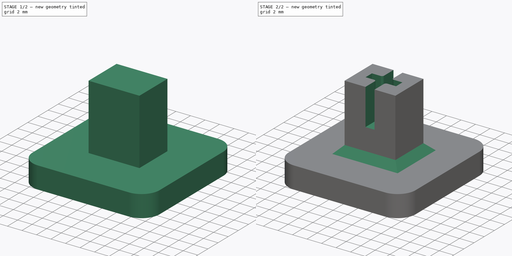
[diagram: build sequence overview — one tinted view per stage of 2, left to right]
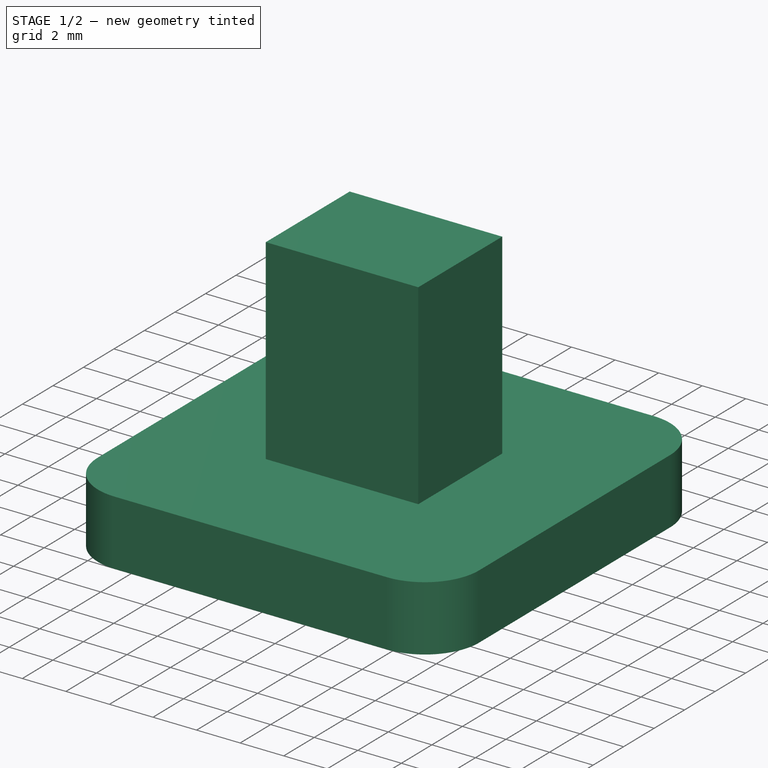
[diagram: stage 1 of 2 — iso view after this stage's code; geometry added in this stage tinted green]
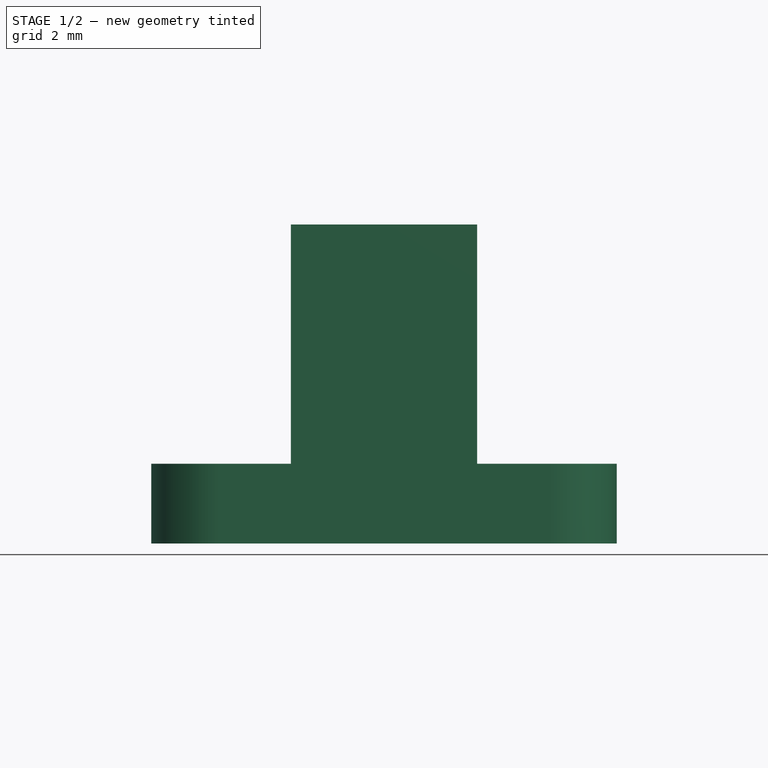
[diagram: stage 1 of 2 — front view after this stage's code; geometry added in this stage tinted green]
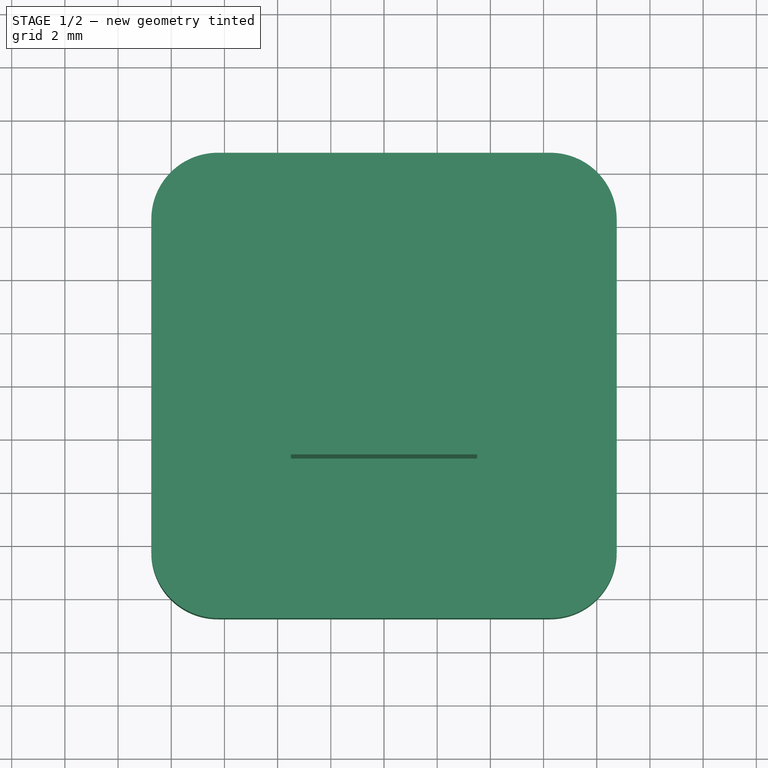
[diagram: stage 1 of 2 — top view after this stage's code; geometry added in this stage tinted green]
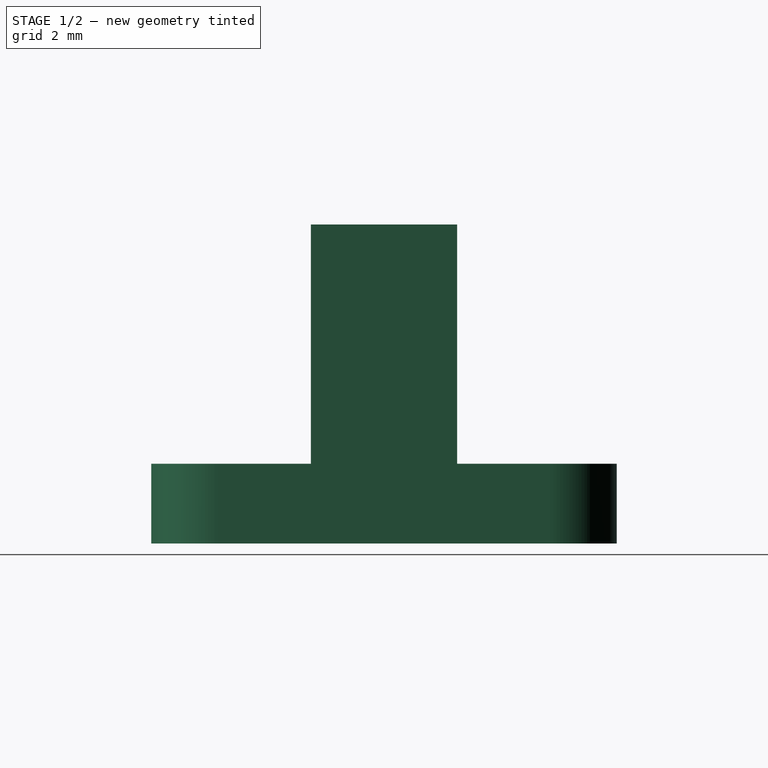
[diagram: stage 1 of 2 — right view after this stage's code; geometry added in this stage tinted green]
FCSTD DOCUMENT  (FreeCAD 0.21R33771 (Git))
Label: Switch tall
License: All rights reserved
LicenseURL: http://en.wikipedia.org/wiki/All_rights_reserved
objects: Sketcher::SketchObject×3, PartDesign::Pad×2, PartDesign::Pocket×1, PartDesign::Chamfer×1, PartDesign::Body×1
note: 12 computed .brp shape members not serialized (recipe doc carries the construction recipe); baked Part::Feature solids carry a one-line shape summary decoded from their .brp

FEATURE [Sketcher::SketchObject] Sketch
  FullyConstrained = true
  MapMode = 5
  Support = -> [XY_Plane]
  sketch-geometry (10):
    g0: ArcOfCircle CenterX=-6.25 CenterY=6.25 CenterZ=0 NormalX=0 NormalY=0 NormalZ=1 AngleXU=0 Radius=2.5 StartAngle=1.5708 EndAngle=3.14159
    g1: LineSegment StartX=-6.25 StartY=8.75 StartZ=0 EndX=6.25 EndY=8.75 EndZ=0
    g2: ArcOfCircle CenterX=6.25 CenterY=6.25 CenterZ=0 NormalX=0 NormalY=0 NormalZ=1 AngleXU=0 Radius=2.5 StartAngle=2.09e-13 EndAngle=1.5708
    g3: LineSegment StartX=8.75 StartY=6.25 StartZ=0 EndX=8.75 EndY=-6.25 EndZ=0
    g4: ArcOfCircle CenterX=6.25 CenterY=-6.25 CenterZ=0 NormalX=0 NormalY=0 NormalZ=1 AngleXU=0 Radius=2.5 StartAngle=4.71239 EndAngle=6.28319
    g5: LineSegment StartX=6.25 StartY=-8.75 StartZ=0 EndX=-6.25 EndY=-8.75 EndZ=0
    g6: ArcOfCircle CenterX=-6.25 CenterY=-6.25 CenterZ=0 NormalX=0 NormalY=0 NormalZ=1 AngleXU=0 Radius=2.5 StartAngle=3.14159 EndAngle=4.71239
    g7: LineSegment StartX=-8.75 StartY=-6.25 StartZ=0 EndX=-8.75 EndY=6.25 EndZ=0
    g8: GeomPoint X=-8.75 Y=8.75 Z=0
    g9: GeomPoint X=8.75 Y=-8.75 Z=0
  constraints (23):
    c: Tangent(g0,g1) = 1.5708
    c: Tangent(g1,g2) = 1.5708
    c: Tangent(g2,g3) = 1.5708
    c: Tangent(g3,g4) = 1.5708
    c: Tangent(g4,g5) = 1.5708
    c: Tangent(g5,g6) = 1.5708
    c: Tangent(g6,g7) = 1.5708
    c: Tangent(g7,g0) = 1.5708
    c: Horizontal(g1)
    c: Horizontal(g5)
    c: Vertical(g3)
    c: Vertical(g7)
    c: Equal(g0,g2)
    c: Equal(g2,g4)
    c: Equal(g4,g6)
    c: PointOnObject(g8,g1)
    c: PointOnObject(g8,g7)
    c: PointOnObject(g9,g3)
    c: PointOnObject(g9,g5)
    c: Symmetric(g9,g8,g-1)
    c: DistanceX(g8,g9) = 17.5
    c: DistanceY(g9,g8) = 17.5
    c: Radius(g0) = 2.5
FEATURE [PartDesign::Pad] Pad
  Direction = (0,0,1)
  Length = 3
  Length2 = 10
  Profile = -> Sketch
  ReferenceAxis = -> Sketch [N_Axis]
  Type = 0
FEATURE [Sketcher::SketchObject] Sketch001
  FullyConstrained = true
  MapMode = 5
  Placement = pos=(0,0,3) rot=(0,0,1;0rad)
  Support = -> [Pad]
  sketch-geometry (4):
    g0: LineSegment StartX=-3.5 StartY=2.75 StartZ=0 EndX=3.5 EndY=2.75 EndZ=0
    g1: LineSegment StartX=3.5 StartY=2.75 StartZ=0 EndX=3.5 EndY=-2.75 EndZ=0
    g2: LineSegment StartX=3.5 StartY=-2.75 StartZ=0 EndX=-3.5 EndY=-2.75 EndZ=0
    g3: LineSegment StartX=-3.5 StartY=-2.75 StartZ=0 EndX=-3.5 EndY=2.75 EndZ=0
  constraints (11):
    c: Coincident(g0,g1)
    c: Coincident(g1,g2)
    c: Coincident(g2,g3)
    c: Coincident(g3,g0)
    c: Horizontal(g0)
    c: Horizontal(g2)
    c: Vertical(g1)
    c: Vertical(g3)
    c: Symmetric(g0,g1,g-1)
    c: DistanceX(g0,g1) = 7
    c: DistanceY(g1,g0) = 5.5
FEATURE [PartDesign::Pad] Pad001
  BaseFeature = -> Pad
  Direction = (0,0,1)
  Length = 9
  Length2 = 10
  Profile = -> Sketch001
  ReferenceAxis = -> Sketch001 [N_Axis]
  Type = 0
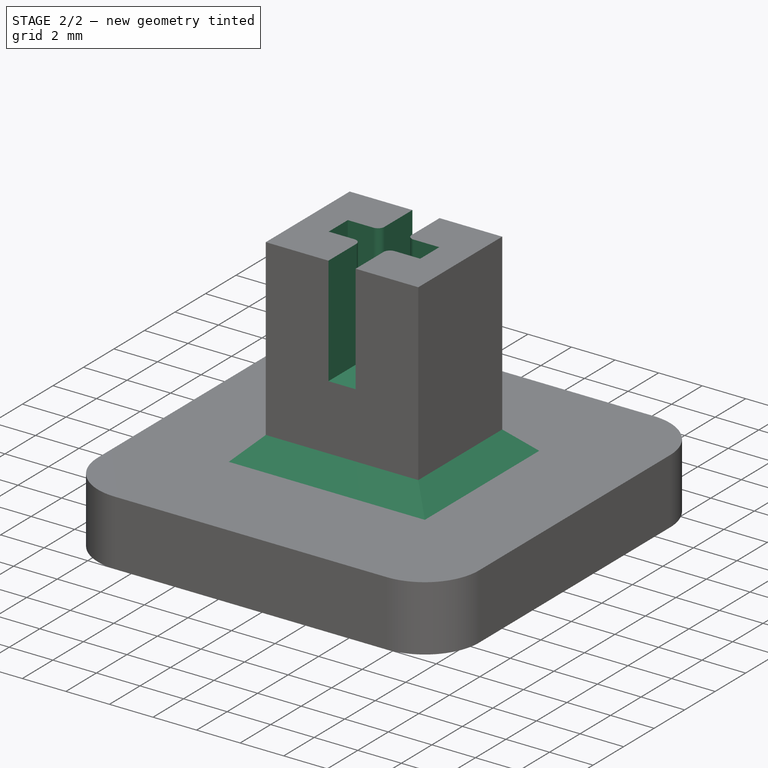
[diagram: stage 2 of 2 — iso view after this stage's code; geometry added in this stage tinted green]
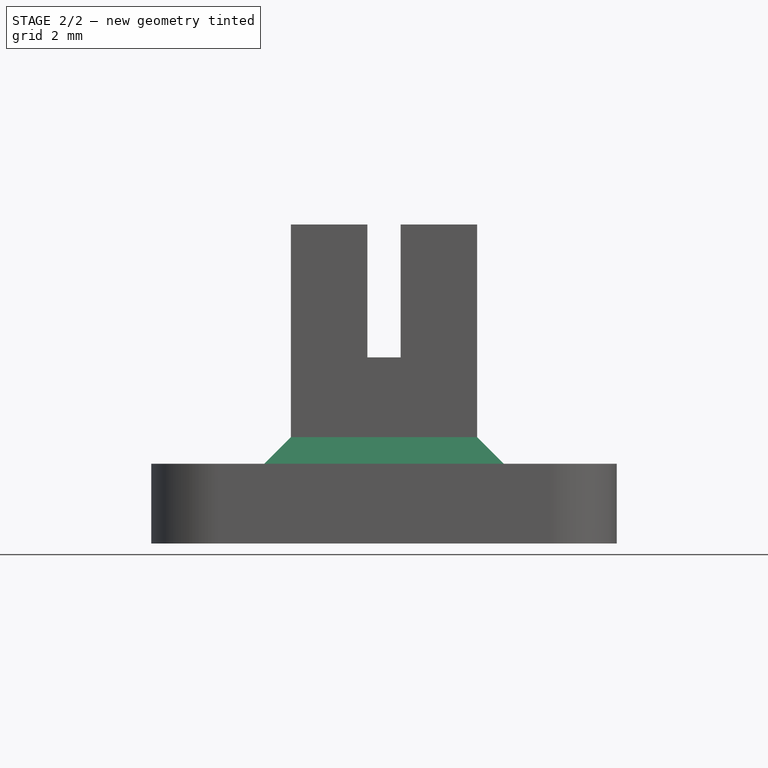
[diagram: stage 2 of 2 — front view after this stage's code; geometry added in this stage tinted green]
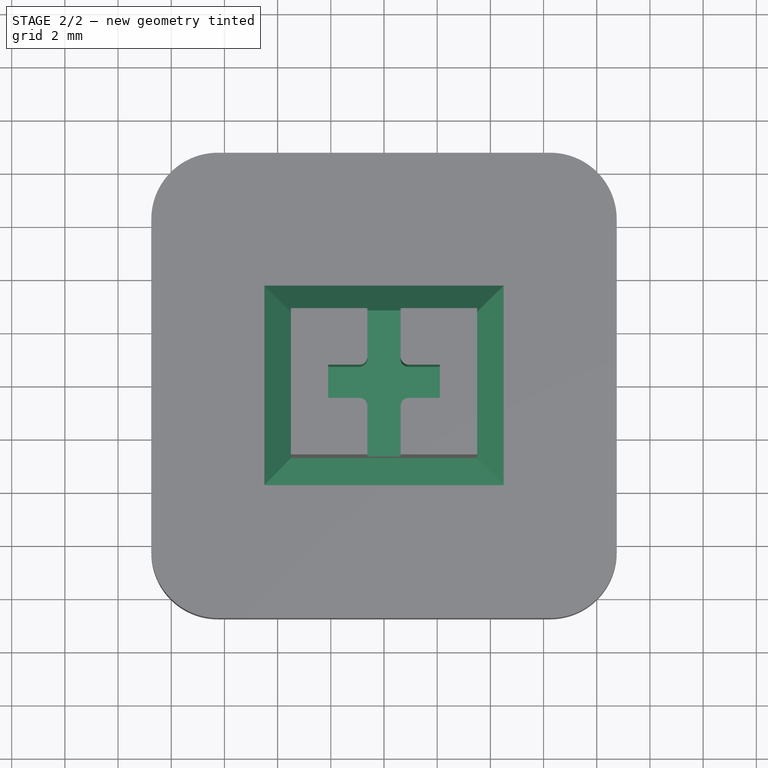
[diagram: stage 2 of 2 — top view after this stage's code; geometry added in this stage tinted green]
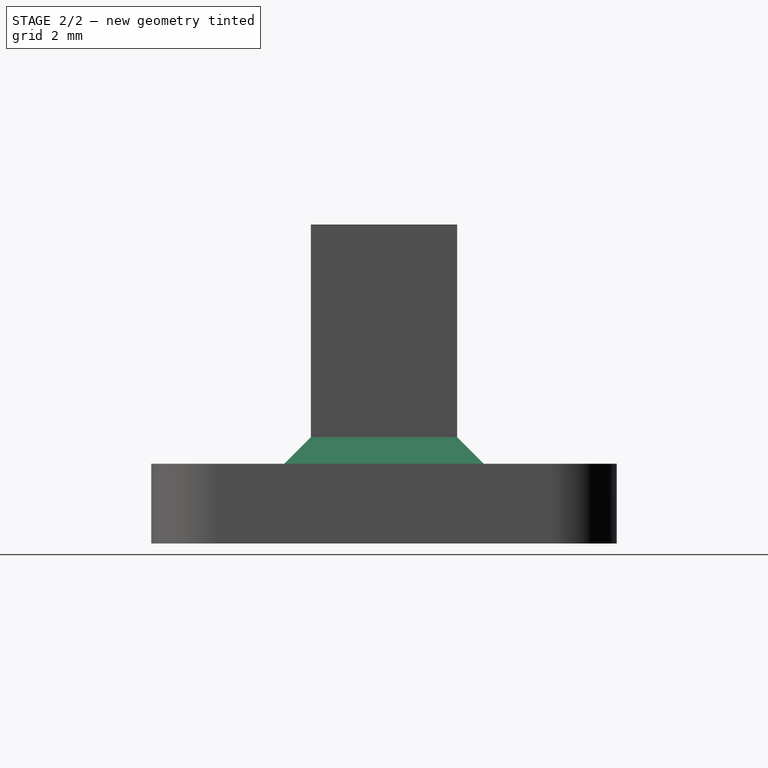
[diagram: stage 2 of 2 — right view after this stage's code; geometry added in this stage tinted green]
FEATURE [Sketcher::SketchObject] Sketch002
  ExternalGeometry = -> [Pad001]
  FullyConstrained = true
  MapMode = 5
  Placement = pos=(0,0,12) rot=(0,0,1;0rad)
  Support = -> [Pad001]
  sketch-geometry (20):
    g0: LineSegment StartX=-0.625 StartY=2.75 StartZ=0 EndX=-0.625 EndY=0.925 EndZ=0
    g1: LineSegment StartX=-0.925 StartY=0.625 StartZ=0 EndX=-2.1 EndY=0.625 EndZ=0
    g2: LineSegment StartX=-2.1 StartY=0.625 StartZ=0 EndX=-2.1 EndY=-0.625 EndZ=0
    g3: LineSegment StartX=-2.1 StartY=-0.625 StartZ=0 EndX=-0.925 EndY=-0.625 EndZ=0
    g4: LineSegment StartX=-0.625 StartY=-0.925 StartZ=0 EndX=-0.625 EndY=-2.75 EndZ=0
    g5: LineSegment StartX=0.625 StartY=2.75 StartZ=0 EndX=0.625 EndY=0.925 EndZ=0
    g6: LineSegment StartX=0.925 StartY=0.625 StartZ=0 EndX=2.1 EndY=0.625 EndZ=0
    g7: LineSegment StartX=2.1 StartY=0.625 StartZ=0 EndX=2.1 EndY=-0.625 EndZ=0
    g8: LineSegment StartX=2.1 StartY=-0.625 StartZ=0 EndX=0.925 EndY=-0.625 EndZ=0
    g9: LineSegment StartX=0.625 StartY=-0.925 StartZ=0 EndX=0.625 EndY=-2.75 EndZ=0
    g10: LineSegment StartX=-0.625 StartY=2.75 StartZ=0 EndX=0.625 EndY=2.75 EndZ=0
    g11: LineSegment StartX=-0.625 StartY=-2.75 StartZ=0 EndX=0.625 EndY=-2.75 EndZ=0
    g12: ArcOfCircle CenterX=-0.925 CenterY=0.925 CenterZ=0 NormalX=0 NormalY=0 NormalZ=1 AngleXU=0 Radius=0.3 StartAngle=4.71239 EndAngle=6.28319
    g13: GeomPoint X=-0.625 Y=0.625 Z=0
    g14: ArcOfCircle CenterX=0.925 CenterY=0.925 CenterZ=0 NormalX=0 NormalY=0 NormalZ=1 AngleXU=0 Radius=0.3 StartAngle=3.14159 EndAngle=4.71239
    g15: GeomPoint X=0.625 Y=0.625 Z=0
    g16: ArcOfCircle CenterX=0.925 CenterY=-0.925 CenterZ=0 NormalX=0 NormalY=0 NormalZ=1 AngleXU=0 Radius=0.3 StartAngle=1.5708 EndAngle=3.14159
    g17: GeomPoint X=0.625 Y=-0.625 Z=0
    g18: ArcOfCircle CenterX=-0.925 CenterY=-0.925 CenterZ=0 NormalX=0 NormalY=0 NormalZ=1 AngleXU=0 Radius=0.3 StartAngle=0 EndAngle=1.5708
    g19: GeomPoint X=-0.625 Y=-0.625 Z=0
  constraints (51):
    c: Vertical(g0)
    c: Horizontal(g1)
    c: Coincident(g2,g1)
    c: Vertical(g2)
    c: Coincident(g3,g2)
    c: Horizontal(g3)
    c: Vertical(g4)
    c: Vertical(g5)
    c: Horizontal(g6)
    c: Coincident(g7,g6)
    c: Vertical(g7)
    c: Coincident(g8,g7)
    c: Horizontal(g8)
    c: Vertical(g9)
    c: Coincident(g10,g0)
    c: Coincident(g10,g5)
    c: Horizontal(g10)
    c: Coincident(g11,g4)
    c: Coincident(g11,g9)
    c: Horizontal(g11)
    c: Vertical(g19,g13)
    c: Vertical(g17,g15)
    c: Horizontal(g13,g15)
    c: Horizontal(g19,g17)
    c: Equal(g2,g10)
    c: Symmetric(g13,g17,g-1)
    c: DistanceX(g10,g10) = 1.25
    c: DistanceX(g1,g6) = 4.2
    c: PointOnObject(g0,g-3)
    c: PointOnObject(g13,g0)
    c: PointOnObject(g13,g1)
    c: Tangent(g0,g12) = 1.5708
    c: Tangent(g1,g12) = 1.5708
    c: PointOnObject(g15,g5)
    c: PointOnObject(g15,g6)
    c: Tangent(g5,g14) = -1.5708
    c: Tangent(g6,g14) = -1.5708
    c: PointOnObject(g17,g8)
    c: PointOnObject(g17,g9)
    c: Tangent(g8,g16) = -1.5708
    c: Tangent(g9,g16) = -1.5708
    c: PointOnObject(g19,g3)
    c: PointOnObject(g19,g4)
    c: Tangent(g3,g18) = 1.5708
    c: Tangent(g4,g18) = 1.5708
    c: Equal(g12,g14)
    c: Equal(g12,g18)
    c: Equal(g12,g16)
    c: Radius(g12) = 0.3
    c: Equal(g1,g6)
    c: Equal(g9,g5)
FEATURE [PartDesign::Pocket] Pocket
  BaseFeature = -> Pad001
  Direction = (0,0,-1)
  Length = 5
  Length2 = 5
  Profile = -> Sketch002
  ReferenceAxis = -> Sketch002 [N_Axis]
  Type = 0
FEATURE [PartDesign::Chamfer] Chamfer
  Angle = 45
  Base = -> Pocket [Edge21,Edge24,Edge22,Edge23]
  BaseFeature = -> Pocket
  ChamferType = 0
  FlipDirection = false
  Size = 1
  Size2 = 1
  SupportTransform = false
  UseAllEdges = false
FEATURE [PartDesign::Body] Body
  Group = -> [Sketch,Pad,Sketch001,Pad001,Sketch002,Pocket,Chamfer]
  Origin = -> Origin
  Tip = -> Chamfer
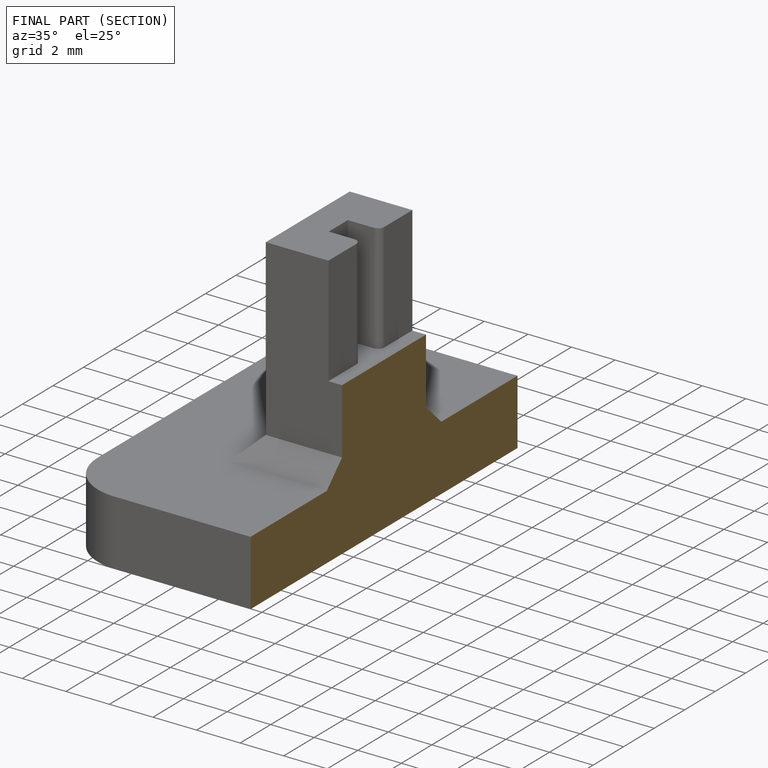
[diagram: finished part — half-section view (interior)]
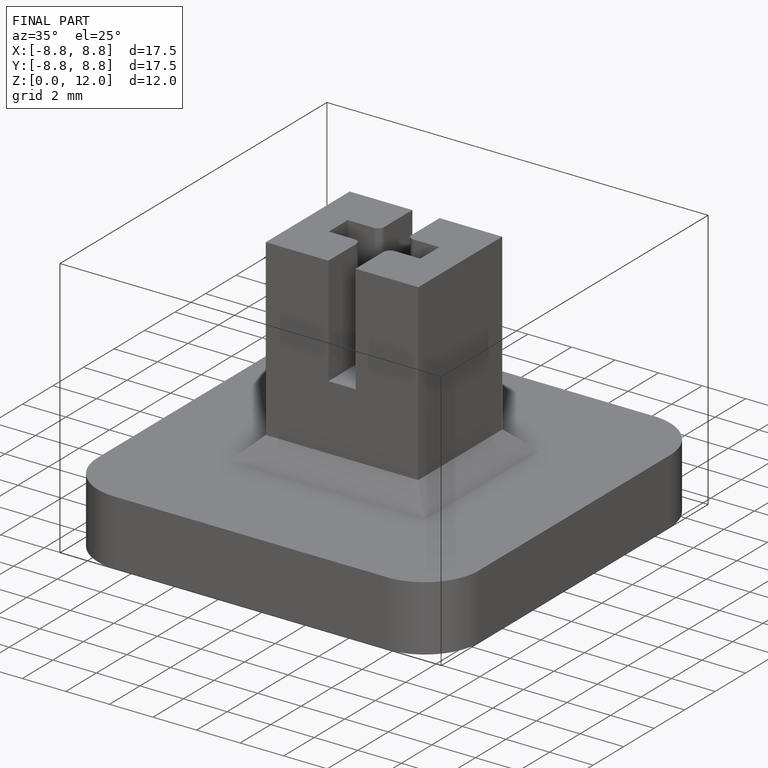
[diagram: finished part — iso view with bounding-box wireframe]
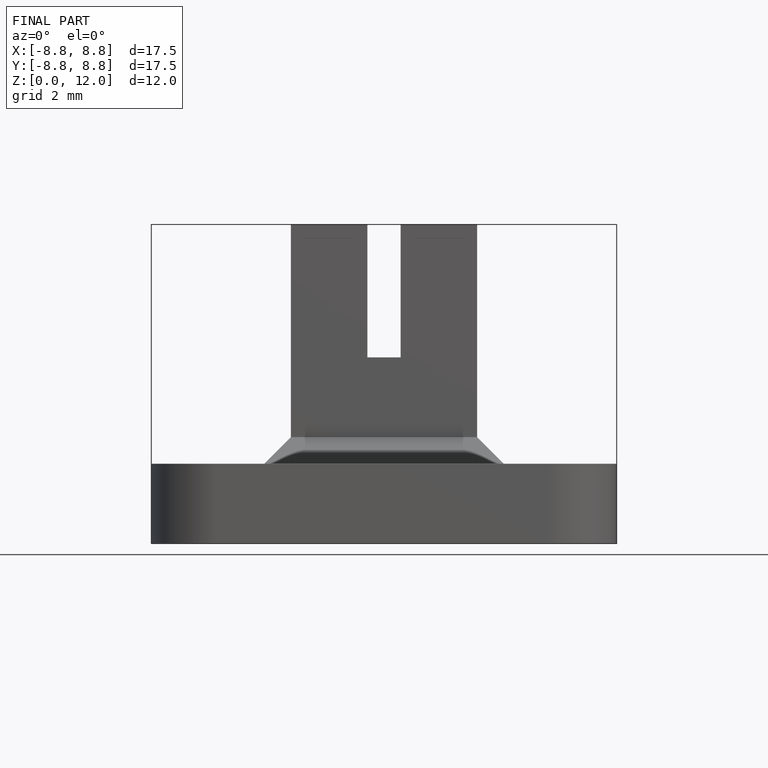
[diagram: finished part — front view with bounding-box wireframe]
